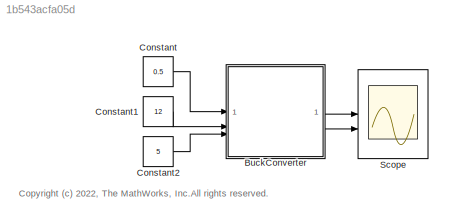
MODEL slx_1b543acfa05d
KIND model
CONFIG AbsTol = auto
CONFIG EnableMultiTasking = off
CONFIG FixedStep = auto
CONFIG MaxStep = auto
CONFIG MinStep = auto
CONFIG RelTol = 1e-3
CONFIG SampleTimeConstraint = Unconstrained
CONFIG SolverName = VariableStepAuto
CONFIG StartTime = 0.0
CONFIG StopTime = 0.1
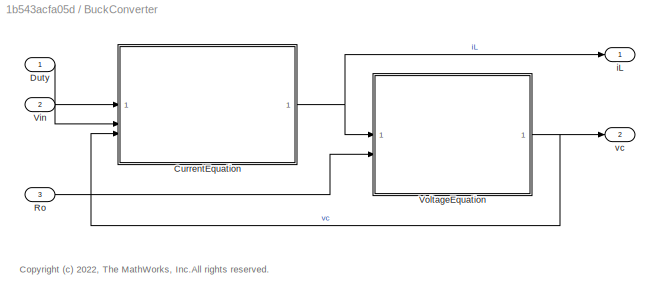
BLOCK [SubSystem] BuckConverter
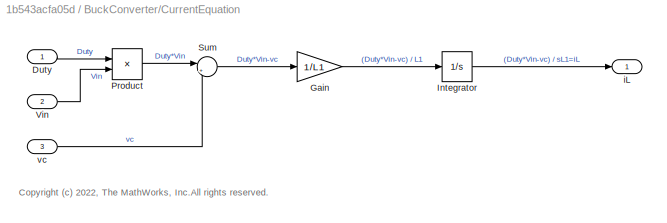
BLOCK [SubSystem] BuckConverter/CurrentEquation
BLOCK [Inport] BuckConverter/CurrentEquation/Duty
BLOCK [Gain] BuckConverter/CurrentEquation/Gain
  Gain = 1/L1
BLOCK [Integrator] BuckConverter/CurrentEquation/Integrator
BLOCK [Product] BuckConverter/CurrentEquation/Product
BLOCK [Sum] BuckConverter/CurrentEquation/Sum
  Inputs = |+-
BLOCK [Inport] BuckConverter/CurrentEquation/Vin
  Port = 2
BLOCK [Outport] BuckConverter/CurrentEquation/iL
BLOCK [Inport] BuckConverter/CurrentEquation/vc
  Port = 3
BLOCK [Inport] BuckConverter/Duty
BLOCK [Inport] BuckConverter/Ro
  Port = 3
BLOCK [Inport] BuckConverter/Vin
  Port = 2
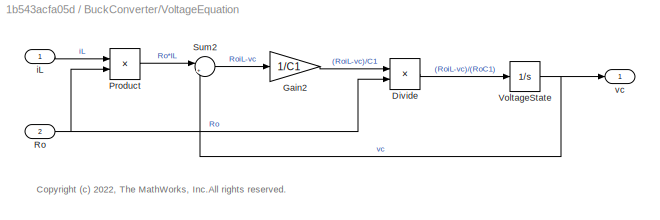
BLOCK [SubSystem] BuckConverter/VoltageEquation
BLOCK [Product] BuckConverter/VoltageEquation/Divide
  Inputs = */
BLOCK [Gain] BuckConverter/VoltageEquation/Gain2
  Gain = 1/C1
BLOCK [Product] BuckConverter/VoltageEquation/Product
BLOCK [Inport] BuckConverter/VoltageEquation/Ro
  Port = 2
BLOCK [Sum] BuckConverter/VoltageEquation/Sum2
  Inputs = |+-
BLOCK [Integrator] BuckConverter/VoltageEquation/VoltageState
BLOCK [Inport] BuckConverter/VoltageEquation/iL
BLOCK [Outport] BuckConverter/VoltageEquation/vc
BLOCK [Outport] BuckConverter/iL
BLOCK [Outport] BuckConverter/vc
  Port = 2
BLOCK [Constant] Constant
  Value = 0.5
BLOCK [Constant] Constant1
  Value = 12
BLOCK [Constant] Constant2
  Value = 5
BLOCK [Scope] Scope
  Floating = off
  NumInputPorts = 2
  ScopeSpecificationString = Simulink.scopes.TimeScopeBlockCfg('CurrentConfiguration', extmgr.ConfigurationSet(extmgr.Configuration('Core','General UI',true),extmgr.Configuration('Core','Source UI',true),extmgr.Configuration('Sources','WiredSimulink',true),extmgr.Configuration('Visuals','Time Domain',true,'SerializedDisplays',{struct('MinYLimReal','-2.29807','MaxYLimReal','5.76772','YLabelReal','','MinYLimMag','0.00000','MaxY...<+1944ch>
ANNOTATION (root): <copyright redacted>
ANNOTATION BuckConverter: <copyright redacted>
ANNOTATION BuckConverter/CurrentEquation: <copyright redacted>
ANNOTATION BuckConverter/VoltageEquation: <copyright redacted>
LINE BuckConverter/CurrentEquation/Duty:1 -> BuckConverter/CurrentEquation/Product:1
LINE BuckConverter/CurrentEquation/Gain:1 -> BuckConverter/CurrentEquation/Integrator:1
LINE BuckConverter/CurrentEquation/Integrator:1 -> BuckConverter/CurrentEquation/iL:1
LINE BuckConverter/CurrentEquation/Product:1 -> BuckConverter/CurrentEquation/Sum:1
LINE BuckConverter/CurrentEquation/Sum:1 -> BuckConverter/CurrentEquation/Gain:1
LINE BuckConverter/CurrentEquation/Vin:1 -> BuckConverter/CurrentEquation/Product:2
LINE BuckConverter/CurrentEquation/vc:1 -> BuckConverter/CurrentEquation/Sum:2
NET BuckConverter/CurrentEquation:1 -> BuckConverter/VoltageEquation:1, BuckConverter/iL:1
LINE BuckConverter/Duty:1 -> BuckConverter/CurrentEquation:1
LINE BuckConverter/Ro:1 -> BuckConverter/VoltageEquation:2
LINE BuckConverter/Vin:1 -> BuckConverter/CurrentEquation:2
LINE BuckConverter/VoltageEquation/Divide:1 -> BuckConverter/VoltageEquation/VoltageState:1
LINE BuckConverter/VoltageEquation/Gain2:1 -> BuckConverter/VoltageEquation/Divide:1
LINE BuckConverter/VoltageEquation/Product:1 -> BuckConverter/VoltageEquation/Sum2:1
NET BuckConverter/VoltageEquation/Ro:1 -> BuckConverter/VoltageEquation/Divide:2, BuckConverter/VoltageEquation/Product:2
LINE BuckConverter/VoltageEquation/Sum2:1 -> BuckConverter/VoltageEquation/Gain2:1
NET BuckConverter/VoltageEquation/VoltageState:1 -> BuckConverter/VoltageEquation/Sum2:2, BuckConverter/VoltageEquation/vc:1
LINE BuckConverter/VoltageEquation/iL:1 -> BuckConverter/VoltageEquation/Product:1
NET BuckConverter/VoltageEquation:1 -> BuckConverter/CurrentEquation:3, BuckConverter/vc:1
LINE BuckConverter:1 -> Scope:1
LINE BuckConverter:2 -> Scope:2
LINE Constant1:1 -> BuckConverter:2
LINE Constant2:1 -> BuckConverter:3
LINE Constant:1 -> BuckConverter:1
note: NET lines group one-source signal fan-out (src -> all destinations, sorted); 1:1 wires keep LINE
